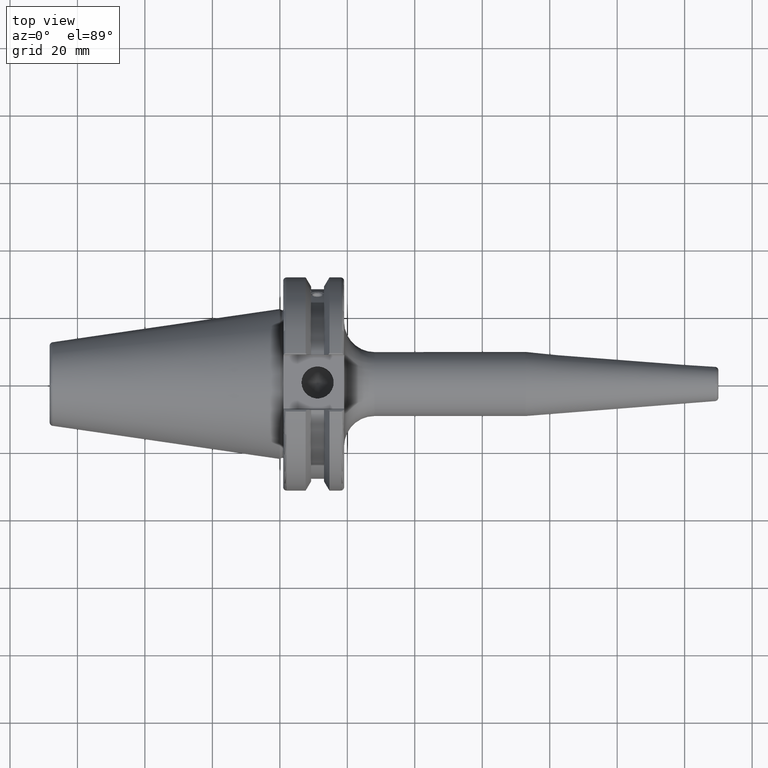
[diagram: clean part render]
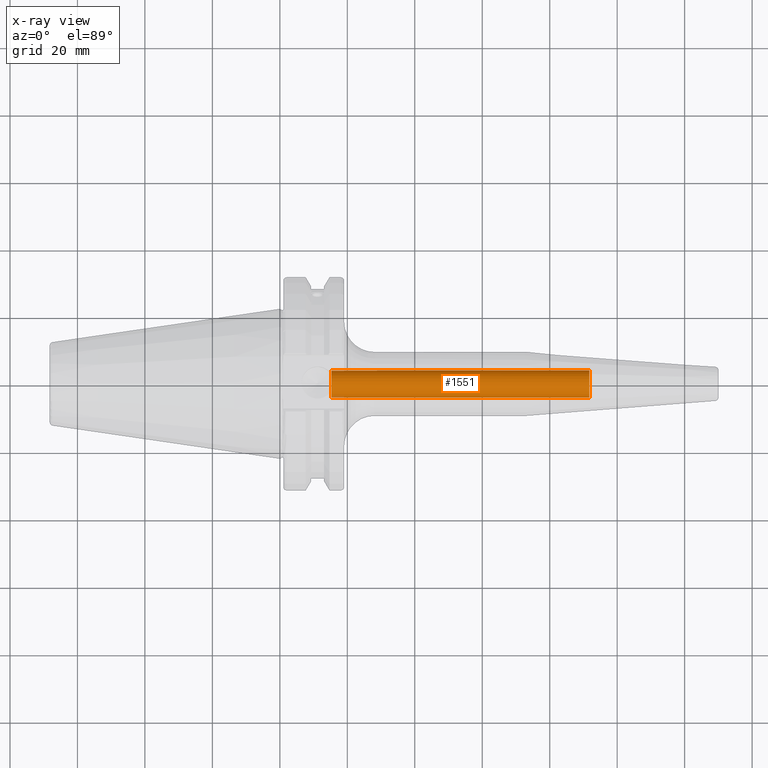
[diagram: x-ray — body ghosted, one internal face saturated and labeled with its STEP entity id]
A machine part, top view, then the same camera in x-ray: the body is ghosted and one INTERNAL B-rep face — a face not visible from any outside direction — is saturated and labeled: STEP entity #1551.
In plain terms, the highlighted cylindrical surface (bore or boss wall) has radius 4 mm, axis along (1, 0, 0).
Its self-contained STEP definition (entity closure, byte-faithful):
#116=LINE('',#2388,#214);
#214=VECTOR('',#1921,4.);
#299=CYLINDRICAL_SURFACE('',#1683,4.);
#386=FACE_OUTER_BOUND('',#478,.T.);
#478=EDGE_LOOP('',(#1104,#1105,#1106,#1107,#1108));
#587=CIRCLE('',#1682,4.);
#588=CIRCLE('',#1684,4.);
#589=CIRCLE('',#1685,4.);
#672=VERTEX_POINT('',#2381);
#673=VERTEX_POINT('',#2385);
#674=VERTEX_POINT('',#2386);
#838=EDGE_CURVE('',#672,#672,#587,.T.);
#840=EDGE_CURVE('',#673,#674,#588,.T.);
#841=EDGE_CURVE('',#673,#672,#116,.T.);
#842=EDGE_CURVE('',#674,#673,#589,.T.);
#1104=ORIENTED_EDGE('',*,*,#840,.F.);
#1105=ORIENTED_EDGE('',*,*,#841,.T.);
#1106=ORIENTED_EDGE('',*,*,#838,.T.);
#1107=ORIENTED_EDGE('',*,*,#841,.F.);
#1108=ORIENTED_EDGE('',*,*,#842,.F.);
#1551=ADVANCED_FACE('',(#386),#299,.F.);
#1682=AXIS2_PLACEMENT_3D('',#2382,#1914,#1915);
#1683=AXIS2_PLACEMENT_3D('',#2384,#1917,#1918);
#1684=AXIS2_PLACEMENT_3D('',#2387,#1919,#1920);
#1685=AXIS2_PLACEMENT_3D('',#2389,#1922,#1923);
#1914=DIRECTION('center_axis',(1.,0.,0.));
#1915=DIRECTION('ref_axis',(0.,1.,0.));
#1917=DIRECTION('center_axis',(1.,0.,0.));
#1918=DIRECTION('ref_axis',(0.,1.,0.));
#1919=DIRECTION('center_axis',(1.,0.,0.));
#1920=DIRECTION('ref_axis',(0.,1.,0.));
#1921=DIRECTION('',(1.,0.,0.));
#1922=DIRECTION('center_axis',(1.,0.,0.));
#1923=DIRECTION('ref_axis',(0.,1.,0.));
#2381=CARTESIAN_POINT('',(91.75,-4.00000000000001,-4.89858719658942E-16));
#2382=CARTESIAN_POINT('Origin',(91.75,0.,0.));
#2384=CARTESIAN_POINT('Origin',(11.75,0.,0.));
#2385=CARTESIAN_POINT('',(15.2521515475689,-4.,-4.89858719658941E-16));
#2386=CARTESIAN_POINT('',(15.2521515475689,-4.89858719658941E-16,-4.));
#2387=CARTESIAN_POINT('Origin',(15.2521515475689,0.,0.));
#2388=CARTESIAN_POINT('',(11.75,-4.,-4.89858719658941E-16));
#2389=CARTESIAN_POINT('Origin',(15.2521515475689,0.,0.));